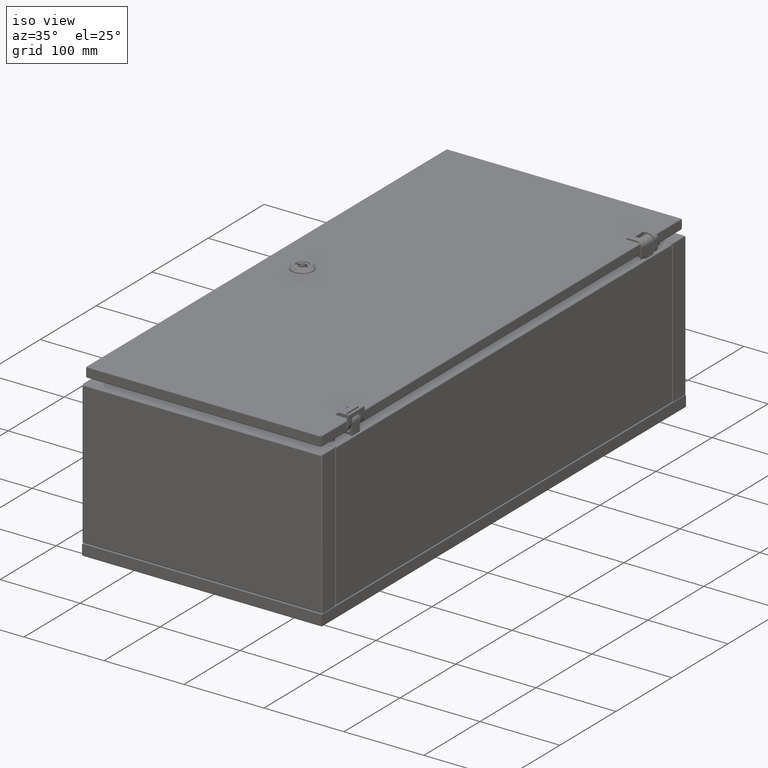
[diagram: clean part render]
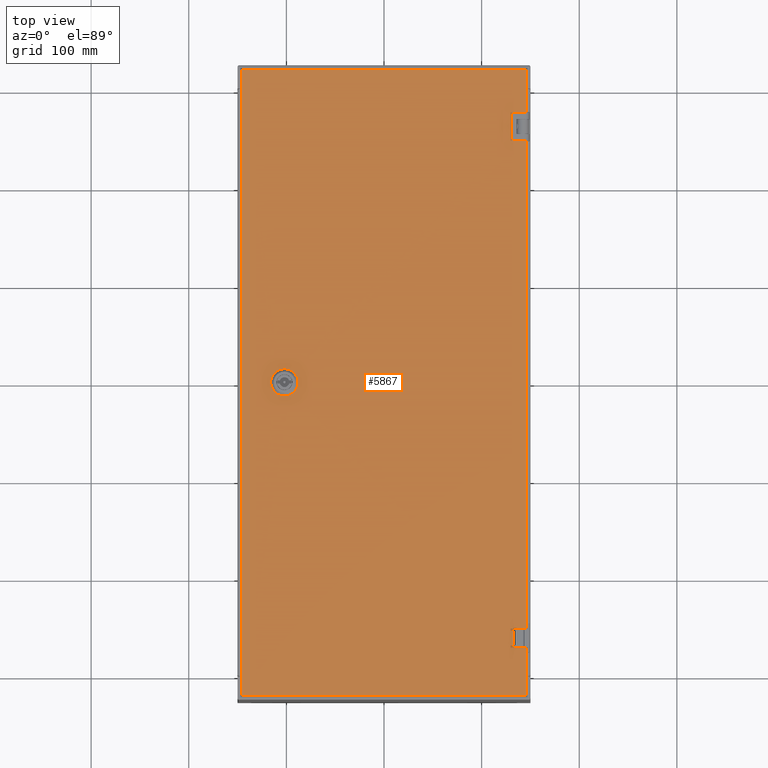
[diagram: tour spotlight — one face highlighted and labeled with its STEP entity id]
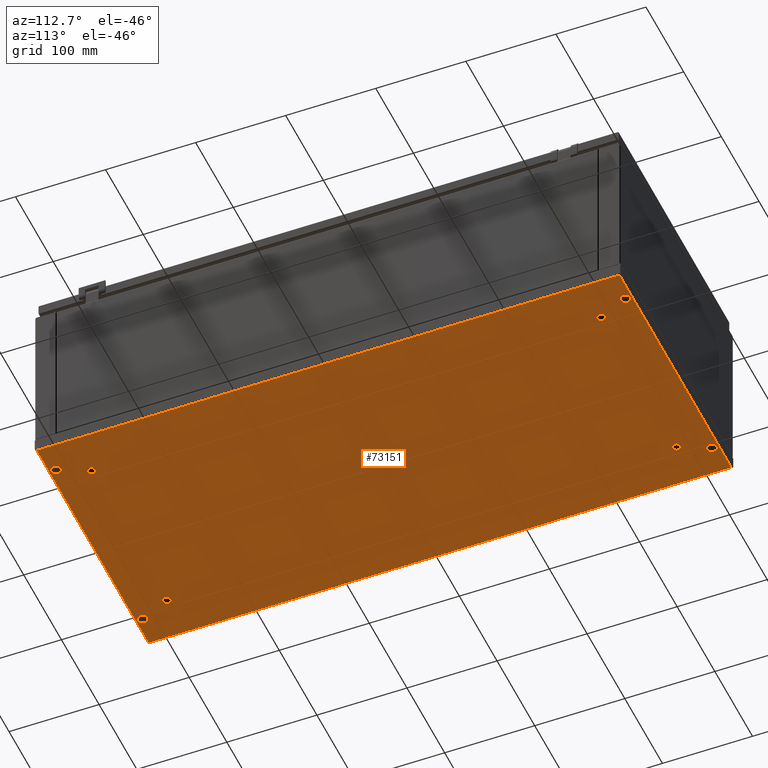
[diagram: tour spotlight — one face highlighted and labeled with its STEP entity id]
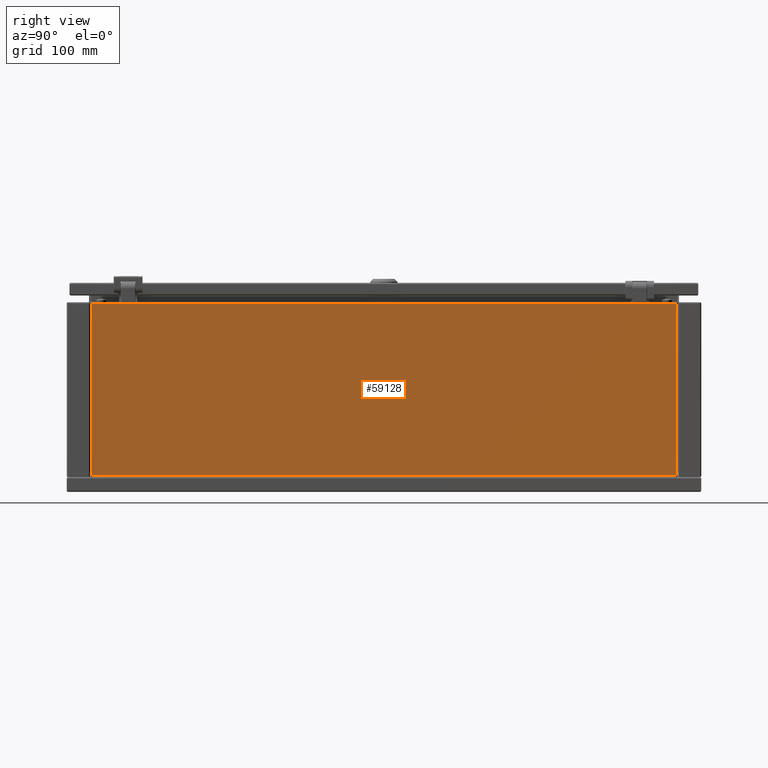
[diagram: tour spotlight — one face highlighted and labeled with its STEP entity id]
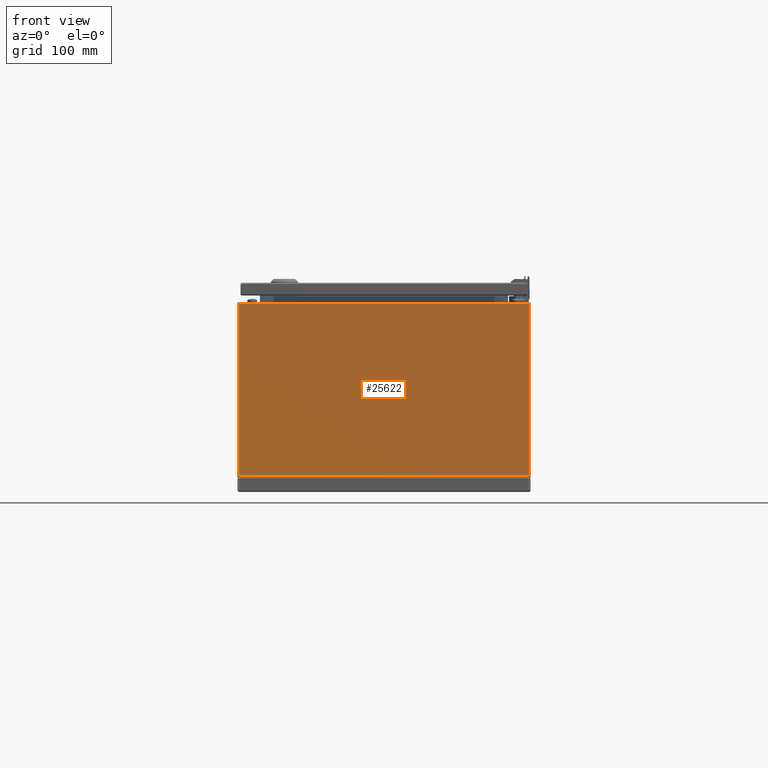
[diagram: tour spotlight — one face highlighted and labeled with its STEP entity id]
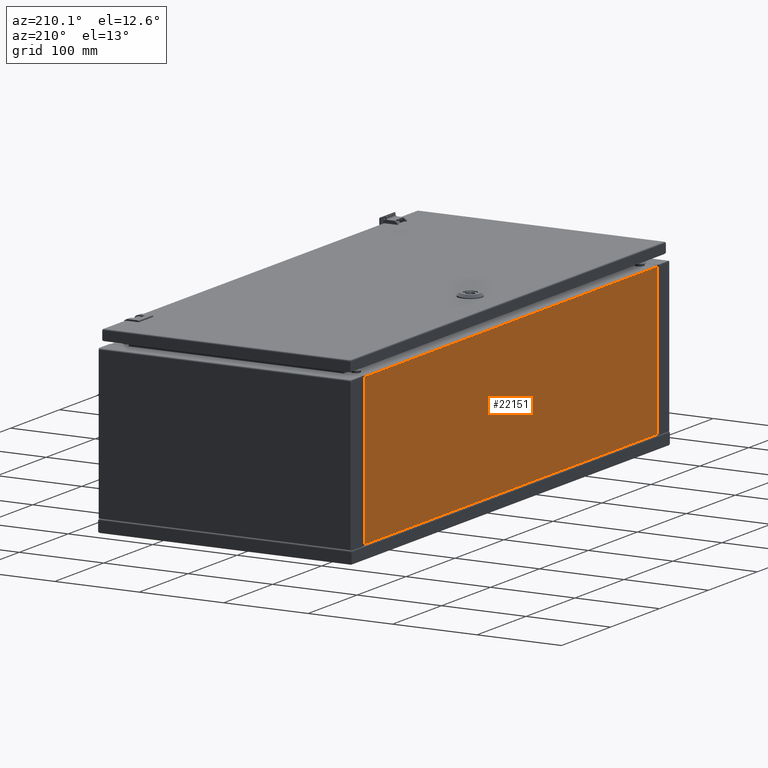
[diagram: tour spotlight — one face highlighted and labeled with its STEP entity id]
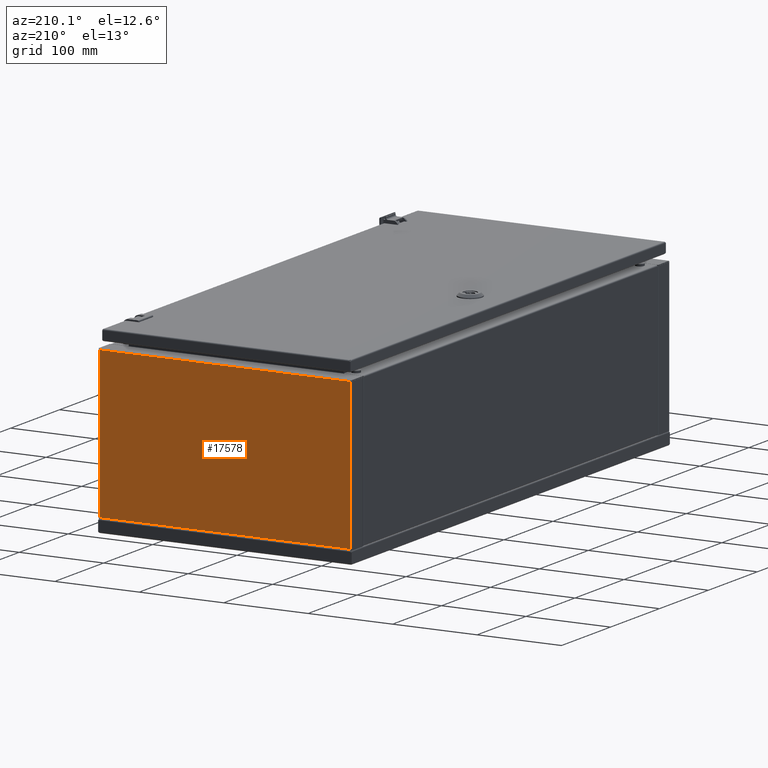
[diagram: tour spotlight — one face highlighted and labeled with its STEP entity id]
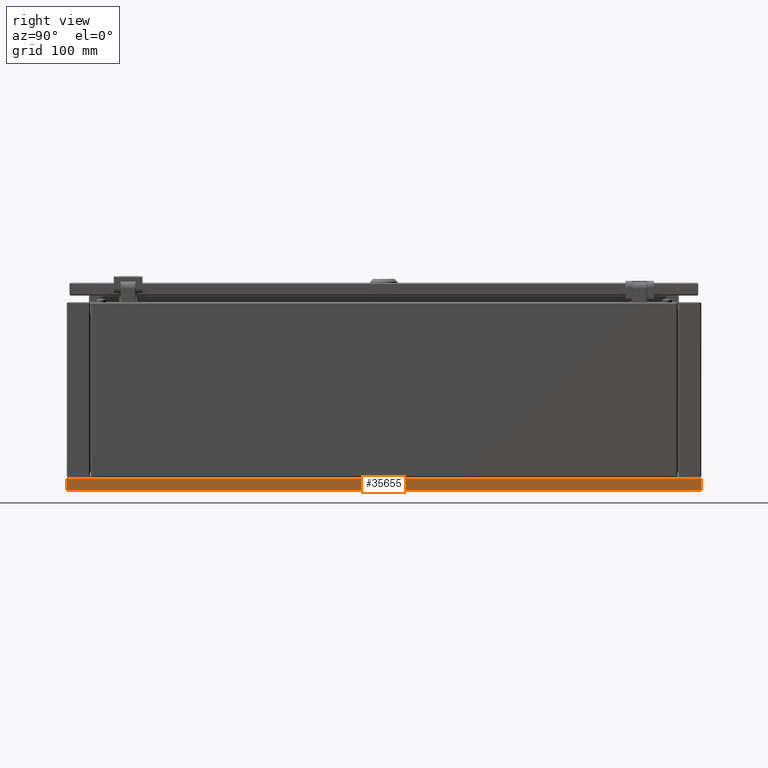
[diagram: tour spotlight — one face highlighted and labeled with its STEP entity id]
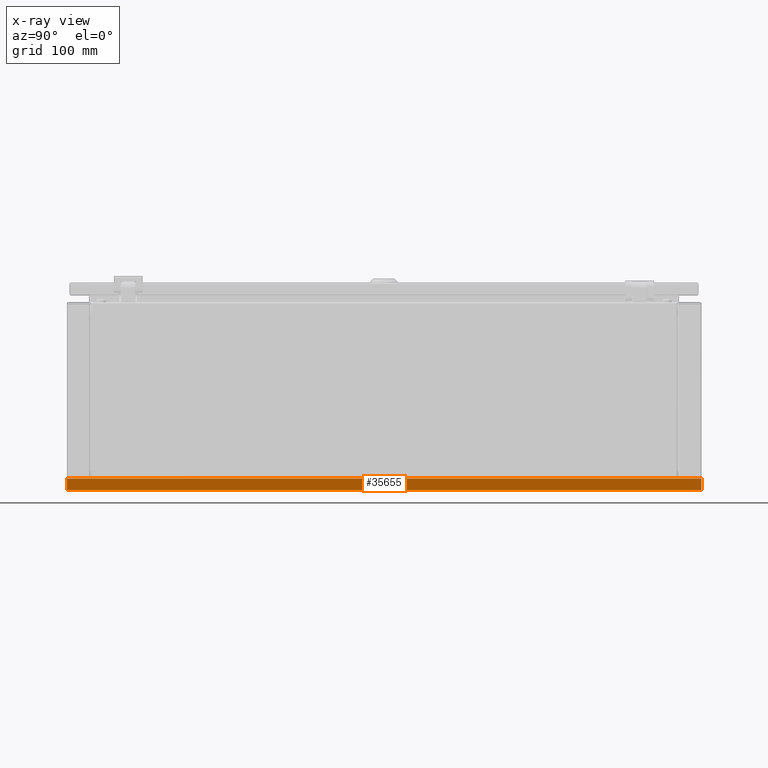
[diagram: x-ray of the same camera — body ghosted, this tour face saturated]
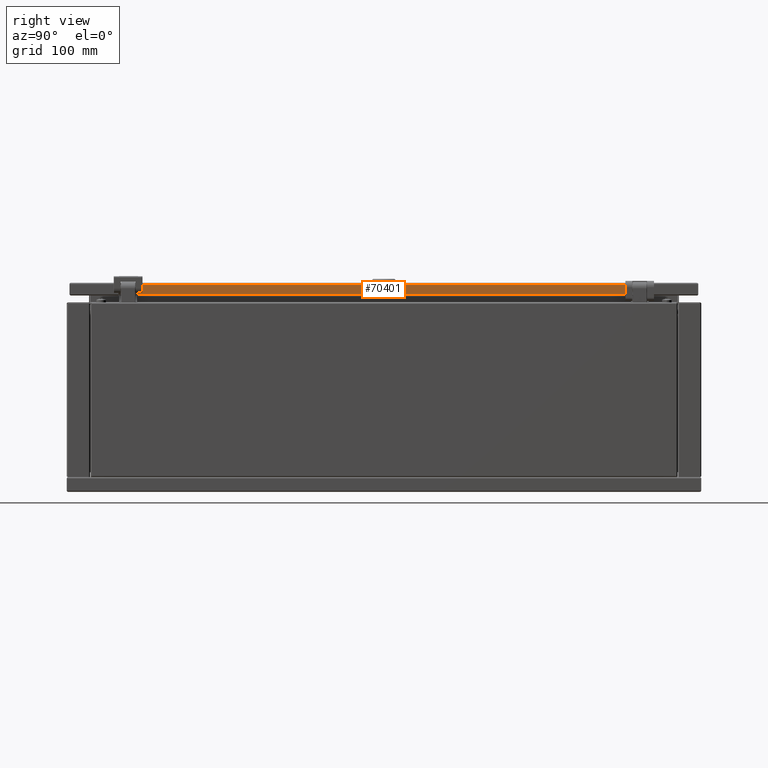
[diagram: tour spotlight — one face highlighted and labeled with its STEP entity id]
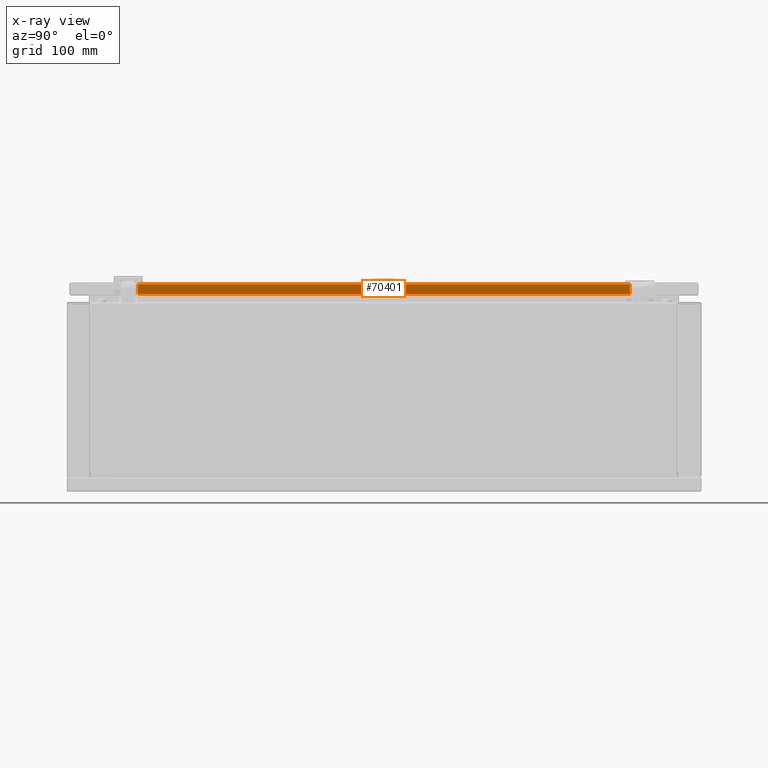
[diagram: x-ray of the same camera — body ghosted, this tour face saturated]
A machine part: a face-by-face anatomy tour. The part has 2431 B-rep faces; the first image is the clean iso view, then the 8 largest visible faces are spotlighted one at a time (largest first), each with its STEP entity span.

Face 1 — top view, entity #5867. In plain terms, the highlighted planar face has unit normal (0, -0, 1).
Definition (entity closure, byte-faithful):
#1028 = CARTESIAN_POINT ( 'NONE',  ( -92.20000000008950300, 5.424717187321570900, 213.1000000000030100 ) ) ;
#2472 = CARTESIAN_POINT ( 'NONE',  ( 145.4999999999020000, -320.6000000000119600, 213.1000000000000200 ) ) ;
#2591 = AXIS2_PLACEMENT_3D ( 'NONE', #3695, #54692, #4481 ) ;
#2686 = VECTOR ( 'NONE', #19305, 1000.000000000000000 ) ;
#2849 = CARTESIAN_POINT ( 'NONE',  ( 132.4999999999106100, 271.8999999999879800, 213.1000000000000200 ) ) ;
#3026 = DIRECTION ( 'NONE',  ( 1.000000000000000000, -7.895888217185719900E-015, -1.206287015244550100E-014 ) ) ;
#3695 = CARTESIAN_POINT ( 'NONE',  ( -102.0000000000894000, -0.1000000000102334000, 213.1000000000030100 ) ) ;
#4481 = DIRECTION ( 'NONE',  ( 7.401486830834377500E-015, 1.000000000000000000, 2.467162276944792200E-015 ) ) ;
#5205 = VERTEX_POINT ( 'NONE', #5734 ) ;
#5734 = CARTESIAN_POINT ( 'NONE',  ( -92.20000000008950300, 5.424717187321570900, 213.1000000000030100 ) ) ;
#5867 = ADVANCED_FACE ( 'NONE', ( #71255, #48711 ), #15367, .T. ) ;
#6152 = EDGE_CURVE ( 'NONE', #19562, #66312, #20167, .T. ) ;
#6205 = VERTEX_POINT ( 'NONE', #20497 ) ;
#6514 = EDGE_CURVE ( 'NONE', #49590, #38140, #32955, .T. ) ;
#6630 = EDGE_CURVE ( 'NONE', #20668, #31736, #17289, .T. ) ;
#6702 = DIRECTION ( 'NONE',  ( -1.000000000000000000, 7.895888217185719900E-015, 1.206287015244550100E-014 ) ) ;
#7383 = VECTOR ( 'NONE', #47115, 1000.000000000000000 ) ;
#7673 = ORIENTED_EDGE ( 'NONE', *, *, #52885, .F. ) ;
#7678 = VERTEX_POINT ( 'NONE', #14795 ) ;
#8443 = ORIENTED_EDGE ( 'NONE', *, *, #60605, .T. ) ;
#8680 = ORIENTED_EDGE ( 'NONE', *, *, #22525, .T. ) ;
#9194 = LINE ( 'NONE', #62669, #73923 ) ;
#9868 = EDGE_CURVE ( 'NONE', #20850, #49590, #47604, .T. ) ;
#9996 = CARTESIAN_POINT ( 'NONE',  ( 132.4999999999061800, -272.1000000000120200, 213.1000000000000200 ) ) ;
#10635 = ORIENTED_EDGE ( 'NONE', *, *, #74445, .F. ) ;
#10656 = VERTEX_POINT ( 'NONE', #50225 ) ;
#11170 = LINE ( 'NONE', #80574, #53324 ) ;
#12256 = AXIS2_PLACEMENT_3D ( 'NONE', #75634, #50994, #57287 ) ;
#13499 = EDGE_CURVE ( 'NONE', #7678, #74459, #80273, .T. ) ;
#14795 = CARTESIAN_POINT ( 'NONE',  ( -145.5000000000867700, 320.3999999999904800, 213.1000000000040000 ) ) ;
#14811 = CIRCLE ( 'NONE', #54269, 11.25000000000000000 ) ;
#15367 = PLANE ( 'NONE',  #19052 ) ;
#15456 = VECTOR ( 'NONE', #80580, 1000.000000000000000 ) ;
#16048 = DIRECTION ( 'NONE',  ( 7.895888217185759400E-015, 1.000000000000000000, 3.081125925390495200E-015 ) ) ;
#16473 = LINE ( 'NONE', #1028, #80293 ) ;
#17289 = LINE ( 'NONE', #66025, #7383 ) ;
#18342 = AXIS2_PLACEMENT_3D ( 'NONE', #74333, #41495, #28599 ) ;
#19052 = AXIS2_PLACEMENT_3D ( 'NONE', #58459, #77919, #3026 ) ;
#19305 = DIRECTION ( 'NONE',  ( 1.000000000000000000, -7.895888217185719900E-015, -1.206287015244550100E-014 ) ) ;
#19562 = VERTEX_POINT ( 'NONE', #55196 ) ;
#20167 = CIRCLE ( 'NONE', #12256, 11.25000000000000000 ) ;
#20497 = CARTESIAN_POINT ( 'NONE',  ( 145.4999999999130000, 320.3999999999894600, 213.1000000000000200 ) ) ;
#20668 = VERTEX_POINT ( 'NONE', #2472 ) ;
#20764 = ORIENTED_EDGE ( 'NONE', *, *, #21875, .F. ) ;
#20850 = VERTEX_POINT ( 'NONE', #60912 ) ;
#21436 = VERTEX_POINT ( 'NONE', #42761 ) ;
#21875 = EDGE_CURVE ( 'NONE', #28996, #10656, #43546, .T. ) ;
#22030 = ORIENTED_EDGE ( 'NONE', *, *, #6514, .F. ) ;
#22525 = EDGE_CURVE ( 'NONE', #6205, #7678, #61074, .T. ) ;
#23013 = DIRECTION ( 'NONE',  ( -1.000000000000000000, 7.895888217185719900E-015, 1.206287015244550100E-014 ) ) ;
#23079 = DIRECTION ( 'NONE',  ( 1.206287015244548000E-014, -3.081125925390590300E-015, 1.000000000000000000 ) ) ;
#25021 = EDGE_CURVE ( 'NONE', #80741, #55486, #52780, .T. ) ;
#25252 = LINE ( 'NONE', #33465, #29216 ) ;
#25266 = ORIENTED_EDGE ( 'NONE', *, *, #70282, .T. ) ;
#25651 = CARTESIAN_POINT ( 'NONE',  ( 132.4999999999063800, -252.1000000000119900, 213.1000000000000200 ) ) ;
#25742 = CARTESIAN_POINT ( 'NONE',  ( 132.4999999999061800, -272.1000000000120200, 213.1000000000000200 ) ) ;
#25841 = ORIENTED_EDGE ( 'NONE', *, *, #52341, .F. ) ;
#27139 = CARTESIAN_POINT ( 'NONE',  ( 145.4999999999080000, -272.1000000000120200, 213.1000000000000200 ) ) ;
#27344 = ORIENTED_EDGE ( 'NONE', *, *, #34917, .F. ) ;
#28599 = DIRECTION ( 'NONE',  ( 7.401486830834377500E-015, 1.000000000000000000, 2.467162276944792200E-015 ) ) ;
#28996 = VERTEX_POINT ( 'NONE', #48664 ) ;
#29216 = VECTOR ( 'NONE', #47165, 1000.000000000000000 ) ;
#29394 = ORIENTED_EDGE ( 'NONE', *, *, #6630, .T. ) ;
#29567 = VERTEX_POINT ( 'NONE', #43112 ) ;
#30226 = CARTESIAN_POINT ( 'NONE',  ( -92.20000000008960200, -5.624717187342199100, 213.1000000000030100 ) ) ;
#31103 = LINE ( 'NONE', #59894, #71265 ) ;
#31679 = EDGE_CURVE ( 'NONE', #66312, #5205, #16473, .T. ) ;
#31736 = VERTEX_POINT ( 'NONE', #27139 ) ;
#32105 = DIRECTION ( 'NONE',  ( 7.895888217185759400E-015, 1.000000000000000000, 3.081125925390495200E-015 ) ) ;
#32340 = DIRECTION ( 'NONE',  ( -7.895888217185759400E-015, -1.000000000000000000, -3.081125925390495200E-015 ) ) ;
#32601 = CARTESIAN_POINT ( 'NONE',  ( 145.4999999999108100, 271.8999999999879800, 213.1000000000000200 ) ) ;
#32955 = LINE ( 'NONE', #45739, #78107 ) ;
#33150 = VECTOR ( 'NONE', #68757, 1000.000000000000000 ) ;
#33374 = ORIENTED_EDGE ( 'NONE', *, *, #70043, .F. ) ;
#33465 = CARTESIAN_POINT ( 'NONE',  ( -111.8000000000894000, 5.424717187321729900, 213.1000000000030100 ) ) ;
#34565 = CARTESIAN_POINT ( 'NONE',  ( -145.5000000000920000, -320.6000000000059900, 213.1000000000025200 ) ) ;
#34917 = EDGE_CURVE ( 'NONE', #21436, #28996, #11170, .T. ) ;
#35808 = CARTESIAN_POINT ( 'NONE',  ( 132.4999999999104100, 251.8999999999879500, 213.1000000000000200 ) ) ;
#36777 = CARTESIAN_POINT ( 'NONE',  ( 146.9999999999104100, 251.8999999999879500, 213.1000000000000200 ) ) ;
#36938 = ORIENTED_EDGE ( 'NONE', *, *, #13499, .T. ) ;
#37325 = DIRECTION ( 'NONE',  ( -1.000000000000000000, 7.895888217185719900E-015, 1.206287015244550100E-014 ) ) ;
#38052 = EDGE_CURVE ( 'NONE', #5205, #21436, #14811, .T. ) ;
#38140 = VERTEX_POINT ( 'NONE', #9996 ) ;
#38368 = VECTOR ( 'NONE', #52254, 1000.000000000000000 ) ;
#39990 = VERTEX_POINT ( 'NONE', #42447 ) ;
#40967 = CARTESIAN_POINT ( 'NONE',  ( 145.6464466093194100, 320.3999999999879800, 213.1000000000000200 ) ) ;
#41495 = DIRECTION ( 'NONE',  ( 1.206287015244548000E-014, -3.081125925390590300E-015, 1.000000000000000000 ) ) ;
#42447 = CARTESIAN_POINT ( 'NONE',  ( -107.5247171874214000, -9.900000000010191300, 213.1000000000030100 ) ) ;
#42761 = CARTESIAN_POINT ( 'NONE',  ( -96.47528281275751300, 9.699999999989710600, 213.1000000000030100 ) ) ;
#43112 = CARTESIAN_POINT ( 'NONE',  ( 132.4999999999106100, 271.8999999999879800, 213.1000000000000200 ) ) ;
#43546 = CIRCLE ( 'NONE', #2591, 11.25000000000000000 ) ;
#44593 = VECTOR ( 'NONE', #23013, 1000.000000000000000 ) ;
#45739 = CARTESIAN_POINT ( 'NONE',  ( 132.4999999999063800, -252.1000000000119900, 213.1000000000000200 ) ) ;
#46617 = ORIENTED_EDGE ( 'NONE', *, *, #57560, .F. ) ;
#47115 = DIRECTION ( 'NONE',  ( 7.895888217185759400E-015, 1.000000000000000000, 3.081125925390495200E-015 ) ) ;
#47165 = DIRECTION ( 'NONE',  ( -7.895888217185759400E-015, -1.000000000000000000, -3.081125925390495200E-015 ) ) ;
#47604 = LINE ( 'NONE', #67387, #44593 ) ;
#47839 = ORIENTED_EDGE ( 'NONE', *, *, #48514, .F. ) ;
#48310 = EDGE_LOOP ( 'NONE', ( #33374, #10635, #20764, #27344, #68338, #56050, #72190, #7673 ) ) ;
#48514 = EDGE_CURVE ( 'NONE', #67435, #29567, #9194, .T. ) ;
#48664 = CARTESIAN_POINT ( 'NONE',  ( -107.5247171874211900, 9.699999999989808300, 213.1000000000030100 ) ) ;
#48711 = FACE_OUTER_BOUND ( 'NONE', #53146, .T. ) ;
#48842 = DIRECTION ( 'NONE',  ( -1.000000000000000000, 7.895888217185719900E-015, 1.206287015244550100E-014 ) ) ;
#49404 = VERTEX_POINT ( 'NONE', #61881 ) ;
#49590 = VERTEX_POINT ( 'NONE', #25651 ) ;
#50225 = CARTESIAN_POINT ( 'NONE',  ( -111.8000000000894000, 5.424717187321729900, 213.1000000000030100 ) ) ;
#50994 = DIRECTION ( 'NONE',  ( 1.206287015244548000E-014, -3.081125925390590300E-015, 1.000000000000000000 ) ) ;
#51443 = CARTESIAN_POINT ( 'NONE',  ( -107.5247171874214000, -9.900000000010191300, 213.1000000000030100 ) ) ;
#52254 = DIRECTION ( 'NONE',  ( -7.895888217185759400E-015, -1.000000000000000000, -3.081125925390495200E-015 ) ) ;
#52341 = EDGE_CURVE ( 'NONE', #38140, #31736, #79298, .T. ) ;
#52780 = LINE ( 'NONE', #36777, #15456 ) ;
#52885 = EDGE_CURVE ( 'NONE', #39990, #19562, #70373, .T. ) ;
#53146 = EDGE_LOOP ( 'NONE', ( #57057, #25266, #65082, #46617, #47839, #60159, #8680, #36938, #8443, #29394, #25841, #22030 ) ) ;
#53324 = VECTOR ( 'NONE', #37325, 1000.000000000000000 ) ;
#54269 = AXIS2_PLACEMENT_3D ( 'NONE', #60636, #23079, #72693 ) ;
#54450 = CARTESIAN_POINT ( 'NONE',  ( 145.4999999999076300, -320.7464466094190200, 213.1000000000000200 ) ) ;
#54582 = VECTOR ( 'NONE', #16048, 1000.000000000000000 ) ;
#54692 = DIRECTION ( 'NONE',  ( 1.206287015244548000E-014, -3.081125925390590300E-015, 1.000000000000000000 ) ) ;
#55196 = CARTESIAN_POINT ( 'NONE',  ( -96.47528281275769800, -9.900000000010280100, 213.1000000000030100 ) ) ;
#55486 = VERTEX_POINT ( 'NONE', #69456 ) ;
#56050 = ORIENTED_EDGE ( 'NONE', *, *, #31679, .F. ) ;
#57057 = ORIENTED_EDGE ( 'NONE', *, *, #9868, .F. ) ;
#57287 = DIRECTION ( 'NONE',  ( 7.401486830834377500E-015, 1.000000000000000000, 2.467162276944792200E-015 ) ) ;
#57560 = EDGE_CURVE ( 'NONE', #29567, #80741, #74552, .T. ) ;
#57833 = DIRECTION ( 'NONE',  ( 7.895888217185759400E-015, 1.000000000000000000, 3.081125925390495200E-015 ) ) ;
#58111 = CARTESIAN_POINT ( 'NONE',  ( 145.4999999999076300, -320.7464466094190200, 213.1000000000000200 ) ) ;
#58459 = CARTESIAN_POINT ( 'NONE',  ( -8.963844636832890400E-011, -0.1000000000110134000, 213.1000000000000200 ) ) ;
#59021 = VECTOR ( 'NONE', #32105, 1000.000000000000000 ) ;
#59894 = CARTESIAN_POINT ( 'NONE',  ( -145.6464466094990100, -320.6000000000099700, 213.1000000000025200 ) ) ;
#60159 = ORIENTED_EDGE ( 'NONE', *, *, #78521, .T. ) ;
#60605 = EDGE_CURVE ( 'NONE', #74459, #20668, #31103, .T. ) ;
#60636 = CARTESIAN_POINT ( 'NONE',  ( -102.0000000000894000, -0.1000000000102334000, 213.1000000000030100 ) ) ;
#60912 = CARTESIAN_POINT ( 'NONE',  ( 145.4999999999082000, -252.1000000000119900, 213.1000000000000200 ) ) ;
#61074 = LINE ( 'NONE', #40967, #72842 ) ;
#61881 = CARTESIAN_POINT ( 'NONE',  ( -111.8000000000894000, -5.624717187342040100, 213.1000000000030100 ) ) ;
#62669 = CARTESIAN_POINT ( 'NONE',  ( 146.9999999999106100, 271.8999999999879800, 213.1000000000000200 ) ) ;
#63018 = CARTESIAN_POINT ( 'NONE',  ( -145.5000000000872000, 320.5464466093969800, 213.1000000000045100 ) ) ;
#63953 = CIRCLE ( 'NONE', #18342, 11.25000000000000000 ) ;
#65082 = ORIENTED_EDGE ( 'NONE', *, *, #25021, .F. ) ;
#66025 = CARTESIAN_POINT ( 'NONE',  ( 145.4999999999076300, -320.7464466094190200, 213.1000000000000200 ) ) ;
#66312 = VERTEX_POINT ( 'NONE', #30226 ) ;
#66322 = LINE ( 'NONE', #54450, #54582 ) ;
#67387 = CARTESIAN_POINT ( 'NONE',  ( 132.4999999999063800, -252.1000000000119900, 213.1000000000000200 ) ) ;
#67435 = VERTEX_POINT ( 'NONE', #32601 ) ;
#68338 = ORIENTED_EDGE ( 'NONE', *, *, #38052, .F. ) ;
#68757 = DIRECTION ( 'NONE',  ( -7.895888217185759400E-015, -1.000000000000000000, -3.081125925390495200E-015 ) ) ;
#69456 = CARTESIAN_POINT ( 'NONE',  ( 145.4999999999106100, 251.8999999999879500, 213.1000000000000200 ) ) ;
#69580 = DIRECTION ( 'NONE',  ( 1.000000000000000000, -7.895888217185719900E-015, -1.206287015244550100E-014 ) ) ;
#69763 = LINE ( 'NONE', #58111, #59021 ) ;
#70043 = EDGE_CURVE ( 'NONE', #49404, #39990, #63953, .T. ) ;
#70282 = EDGE_CURVE ( 'NONE', #20850, #55486, #69763, .T. ) ;
#70373 = LINE ( 'NONE', #51443, #2686 ) ;
#71255 = FACE_BOUND ( 'NONE', #48310, .T. ) ;
#71265 = VECTOR ( 'NONE', #72208, 1000.000000000000000 ) ;
#72190 = ORIENTED_EDGE ( 'NONE', *, *, #6152, .F. ) ;
#72208 = DIRECTION ( 'NONE',  ( 1.000000000000000000, -7.895888217185719900E-015, -1.206287015244550100E-014 ) ) ;
#72693 = DIRECTION ( 'NONE',  ( 7.401486830834377500E-015, 1.000000000000000000, 2.467162276944792200E-015 ) ) ;
#72842 = VECTOR ( 'NONE', #48842, 1000.000000000000000 ) ;
#73923 = VECTOR ( 'NONE', #6702, 1000.000000000000000 ) ;
#74333 = CARTESIAN_POINT ( 'NONE',  ( -102.0000000000894000, -0.1000000000102334000, 213.1000000000030100 ) ) ;
#74445 = EDGE_CURVE ( 'NONE', #10656, #49404, #25252, .T. ) ;
#74459 = VERTEX_POINT ( 'NONE', #34565 ) ;
#74552 = LINE ( 'NONE', #2849, #38368 ) ;
#75634 = CARTESIAN_POINT ( 'NONE',  ( -102.0000000000894000, -0.1000000000102334000, 213.1000000000030100 ) ) ;
#77919 = DIRECTION ( 'NONE',  ( 1.206287015244547700E-014, -3.081125925390590300E-015, 1.000000000000000000 ) ) ;
#78107 = VECTOR ( 'NONE', #32340, 1000.000000000000000 ) ;
#78521 = EDGE_CURVE ( 'NONE', #67435, #6205, #66322, .T. ) ;
#79298 = LINE ( 'NONE', #25742, #81235 ) ;
#80273 = LINE ( 'NONE', #63018, #33150 ) ;
#80293 = VECTOR ( 'NONE', #57833, 1000.000000000000000 ) ;
#80574 = CARTESIAN_POINT ( 'NONE',  ( -107.5247171874211900, 9.699999999989808300, 213.1000000000030100 ) ) ;
#80580 = DIRECTION ( 'NONE',  ( 1.000000000000000000, -7.895888217185719900E-015, -1.206287015244550100E-014 ) ) ;
#80741 = VERTEX_POINT ( 'NONE', #35808 ) ;
#81235 = VECTOR ( 'NONE', #69580, 1000.000000000000000 ) ;

Face 2 — auxiliary view, entity #73151. In plain terms, the highlighted planar face has unit normal (-0, 0, 1).
Definition (entity closure, byte-faithful):
#630 = DIRECTION ( 'NONE',  ( 0.0000000000000000000, 1.000000000000000000, 0.0000000000000000000 ) ) ;
#1087 = CARTESIAN_POINT ( 'NONE',  ( 115.0000000000000000, 316.0999999999999700, -1.000000000000306000 ) ) ;
#1512 = AXIS2_PLACEMENT_3D ( 'NONE', #58659, #14760, #33982 ) ;
#1808 = CIRCLE ( 'NONE', #68305, 5.500000000000005300 ) ;
#2179 = CARTESIAN_POINT ( 'NONE',  ( 115.0000000000000000, -321.6000000000000200, -1.000000000000306000 ) ) ;
#2406 = CARTESIAN_POINT ( 'NONE',  ( 100.0000000000000000, -283.0000000000000000, -1.000000000000306000 ) ) ;
#2735 = VERTEX_POINT ( 'NONE', #34084 ) ;
#3343 = CARTESIAN_POINT ( 'NONE',  ( 104.5000000000000100, 283.0000000000000000, -1.000000000000306000 ) ) ;
#4110 = DIRECTION ( 'NONE',  ( 0.0000000000000000000, 3.810767045206524700E-031, 1.000000000000000000 ) ) ;
#4367 = DIRECTION ( 'NONE',  ( -1.000000000000000000, -9.860761315262649800E-032, 0.0000000000000000000 ) ) ;
#4882 = CARTESIAN_POINT ( 'NONE',  ( -100.0000000000000000, 283.0000000000000000, -1.000000000000306000 ) ) ;
#5003 = EDGE_LOOP ( 'NONE', ( #29200, #36175 ) ) ;
#5265 = VERTEX_POINT ( 'NONE', #45220 ) ;
#6097 = CIRCLE ( 'NONE', #56108, 5.500000000000005300 ) ;
#6887 = DIRECTION ( 'NONE',  ( 0.0000000000000000000, -1.000000000000000000, 0.0000000000000000000 ) ) ;
#7426 = CIRCLE ( 'NONE', #63292, 5.500000000000005300 ) ;
#8249 = ORIENTED_EDGE ( 'NONE', *, *, #70412, .F. ) ;
#8745 = FACE_BOUND ( 'NONE', #16184, .T. ) ;
#8811 = VERTEX_POINT ( 'NONE', #62527 ) ;
#8820 = EDGE_CURVE ( 'NONE', #5265, #40522, #7426, .T. ) ;
#9378 = DIRECTION ( 'NONE',  ( -3.757706426085025200E-062, 3.810767045206524700E-031, 1.000000000000000000 ) ) ;
#9965 = CARTESIAN_POINT ( 'NONE',  ( -148.5000000000000000, 323.5000000000000000, -1.000000000000334000 ) ) ;
#10501 = DIRECTION ( 'NONE',  ( -1.479114197289395800E-031, 1.000000000000000000, 3.595005848646064900E-032 ) ) ;
#10897 = LINE ( 'NONE', #72414, #75574 ) ;
#11711 = CARTESIAN_POINT ( 'NONE',  ( 115.0000000000000000, 310.5999999999999700, -1.000000000000306000 ) ) ;
#12015 = VERTEX_POINT ( 'NONE', #3343 ) ;
#12184 = DIRECTION ( 'NONE',  ( 0.0000000000000000000, -1.000000000000000000, 0.0000000000000000000 ) ) ;
#12401 = ORIENTED_EDGE ( 'NONE', *, *, #59786, .T. ) ;
#13168 = DIRECTION ( 'NONE',  ( 0.0000000000000000000, 1.000000000000000000, 0.0000000000000000000 ) ) ;
#13338 = EDGE_CURVE ( 'NONE', #73642, #26078, #69474, .T. ) ;
#13657 = DIRECTION ( 'NONE',  ( 0.0000000000000000000, -1.000000000000000000, 0.0000000000000000000 ) ) ;
#13771 = AXIS2_PLACEMENT_3D ( 'NONE', #1087, #38236, #70221 ) ;
#13969 = CIRCLE ( 'NONE', #78305, 4.500000000000003600 ) ;
#14687 = DIRECTION ( 'NONE',  ( 0.0000000000000000000, 3.810767045206524700E-031, 1.000000000000000000 ) ) ;
#14728 = CIRCLE ( 'NONE', #71328, 4.500000000000003600 ) ;
#14760 = DIRECTION ( 'NONE',  ( 0.0000000000000000000, -1.959796370949425000E-031, -1.000000000000000000 ) ) ;
#14810 = EDGE_CURVE ( 'NONE', #8811, #79590, #1808, .T. ) ;
#15545 = FACE_BOUND ( 'NONE', #23047, .T. ) ;
#16184 = EDGE_LOOP ( 'NONE', ( #55852, #40926 ) ) ;
#17374 = EDGE_CURVE ( 'NONE', #74874, #24590, #39906, .T. ) ;
#18258 = CARTESIAN_POINT ( 'NONE',  ( 115.0000000000000000, 316.0999999999999700, -1.000000000000306000 ) ) ;
#18728 = CARTESIAN_POINT ( 'NONE',  ( 148.5000000000000000, 323.5000000000000000, -1.000000000000306000 ) ) ;
#18760 = CARTESIAN_POINT ( 'NONE',  ( -115.0000000000000000, 316.0999999999999700, -1.000000000000306000 ) ) ;
#18878 = CIRCLE ( 'NONE', #66293, 5.500000000000005300 ) ;
#19280 = VERTEX_POINT ( 'NONE', #26186 ) ;
#19631 = EDGE_CURVE ( 'NONE', #2735, #46955, #6097, .T. ) ;
#20674 = EDGE_CURVE ( 'NONE', #12015, #79541, #14728, .T. ) ;
#22352 = VECTOR ( 'NONE', #10501, 1000.000000000000000 ) ;
#22530 = DIRECTION ( 'NONE',  ( 1.000000000000000000, 9.860761315262649800E-032, 0.0000000000000000000 ) ) ;
#22998 = DIRECTION ( 'NONE',  ( 0.0000000000000000000, -1.000000000000000000, 0.0000000000000000000 ) ) ;
#23047 = EDGE_LOOP ( 'NONE', ( #51411, #77199 ) ) ;
#23307 = DIRECTION ( 'NONE',  ( 0.0000000000000000000, -1.000000000000000000, 0.0000000000000000000 ) ) ;
#23474 = FACE_BOUND ( 'NONE', #5003, .T. ) ;
#23602 = CARTESIAN_POINT ( 'NONE',  ( -100.0000000000000000, -283.0000000000000000, -1.000000000000306000 ) ) ;
#24362 = DIRECTION ( 'NONE',  ( 1.479114197289395800E-031, -1.000000000000000000, -1.084202172485503800E-016 ) ) ;
#24590 = VERTEX_POINT ( 'NONE', #68619 ) ;
#24637 = ORIENTED_EDGE ( 'NONE', *, *, #17374, .T. ) ;
#24664 = EDGE_CURVE ( 'NONE', #62298, #35218, #55872, .T. ) ;
#24795 = CIRCLE ( 'NONE', #34121, 4.500000000000003600 ) ;
#25045 = ORIENTED_EDGE ( 'NONE', *, *, #14810, .F. ) ;
#25554 = CARTESIAN_POINT ( 'NONE',  ( -115.0000000000000000, 316.0999999999999700, -1.000000000000306000 ) ) ;
#25766 = DIRECTION ( 'NONE',  ( 0.0000000000000000000, -1.000000000000000000, 0.0000000000000000000 ) ) ;
#26078 = VERTEX_POINT ( 'NONE', #65601 ) ;
#26186 = CARTESIAN_POINT ( 'NONE',  ( 148.5000000000000000, -323.5000000000000000, -1.000000000000334000 ) ) ;
#26993 = AXIS2_PLACEMENT_3D ( 'NONE', #37472, #49771, #12184 ) ;
#27109 = VERTEX_POINT ( 'NONE', #31308 ) ;
#27705 = DIRECTION ( 'NONE',  ( 0.0000000000000000000, 3.810767045206524700E-031, 1.000000000000000000 ) ) ;
#29200 = ORIENTED_EDGE ( 'NONE', *, *, #69613, .T. ) ;
#29356 = AXIS2_PLACEMENT_3D ( 'NONE', #2406, #27705, #71250 ) ;
#29743 = EDGE_CURVE ( 'NONE', #40522, #5265, #63959, .T. ) ;
#31308 = CARTESIAN_POINT ( 'NONE',  ( 104.5000000000000100, -283.0000000000000000, -1.000000000000306000 ) ) ;
#32278 = FACE_BOUND ( 'NONE', #51237, .T. ) ;
#33882 = ORIENTED_EDGE ( 'NONE', *, *, #29743, .F. ) ;
#33982 = DIRECTION ( 'NONE',  ( 0.0000000000000000000, -1.000000000000000000, 0.0000000000000000000 ) ) ;
#34084 = CARTESIAN_POINT ( 'NONE',  ( -115.0000000000000000, 310.5999999999999700, -1.000000000000306000 ) ) ;
#34121 = AXIS2_PLACEMENT_3D ( 'NONE', #35080, #60554, #22998 ) ;
#34690 = CARTESIAN_POINT ( 'NONE',  ( 115.0000000000000000, 321.6000000000000200, -1.000000000000306000 ) ) ;
#34699 = VERTEX_POINT ( 'NONE', #41206 ) ;
#34726 = AXIS2_PLACEMENT_3D ( 'NONE', #4882, #79777, #23307 ) ;
#35080 = CARTESIAN_POINT ( 'NONE',  ( 100.0000000000000000, -283.0000000000000000, -1.000000000000306000 ) ) ;
#35214 = ORIENTED_EDGE ( 'NONE', *, *, #20674, .T. ) ;
#35218 = VERTEX_POINT ( 'NONE', #11711 ) ;
#36175 = ORIENTED_EDGE ( 'NONE', *, *, #77868, .T. ) ;
#36370 = EDGE_CURVE ( 'NONE', #46955, #2735, #18878, .T. ) ;
#37472 = CARTESIAN_POINT ( 'NONE',  ( -100.0000000000000000, -283.0000000000000000, -1.000000000000306000 ) ) ;
#38236 = DIRECTION ( 'NONE',  ( 0.0000000000000000000, -1.959796370949425000E-031, -1.000000000000000000 ) ) ;
#38431 = DIRECTION ( 'NONE',  ( 0.0000000000000000000, -1.000000000000000000, 0.0000000000000000000 ) ) ;
#38484 = DIRECTION ( 'NONE',  ( 0.0000000000000000000, -1.959796370949425000E-031, -1.000000000000000000 ) ) ;
#38967 = ORIENTED_EDGE ( 'NONE', *, *, #71362, .T. ) ;
#39459 = CIRCLE ( 'NONE', #51393, 4.500000000000003600 ) ;
#39470 = CARTESIAN_POINT ( 'NONE',  ( -100.0000000000000000, 283.0000000000000000, -1.000000000000306000 ) ) ;
#39472 = CIRCLE ( 'NONE', #29356, 4.500000000000003600 ) ;
#39481 = CARTESIAN_POINT ( 'NONE',  ( -104.5000000000000100, -283.0000000000000000, -1.000000000000306000 ) ) ;
#39582 = CARTESIAN_POINT ( 'NONE',  ( 100.0000000000000000, 283.0000000000000000, -1.000000000000306000 ) ) ;
#39906 = CIRCLE ( 'NONE', #26993, 4.500000000000003600 ) ;
#40144 = AXIS2_PLACEMENT_3D ( 'NONE', #45486, #51267, #13657 ) ;
#40194 = FACE_BOUND ( 'NONE', #57782, .T. ) ;
#40432 = VECTOR ( 'NONE', #49435, 1000.000000000000000 ) ;
#40522 = VERTEX_POINT ( 'NONE', #64294 ) ;
#40555 = DIRECTION ( 'NONE',  ( 0.0000000000000000000, -1.000000000000000000, 0.0000000000000000000 ) ) ;
#40926 = ORIENTED_EDGE ( 'NONE', *, *, #61663, .T. ) ;
#40961 = PLANE ( 'NONE',  #70633 ) ;
#41206 = CARTESIAN_POINT ( 'NONE',  ( 95.50000000000000000, -283.0000000000000000, -1.000000000000306000 ) ) ;
#42159 = FACE_BOUND ( 'NONE', #62259, .T. ) ;
#42437 = EDGE_CURVE ( 'NONE', #79541, #12015, #39459, .T. ) ;
#43305 = DIRECTION ( 'NONE',  ( 0.0000000000000000000, 1.000000000000000000, 0.0000000000000000000 ) ) ;
#44199 = EDGE_CURVE ( 'NONE', #19280, #70098, #64624, .T. ) ;
#44200 = AXIS2_PLACEMENT_3D ( 'NONE', #18258, #68463, #43305 ) ;
#44732 = DIRECTION ( 'NONE',  ( 0.0000000000000000000, -1.959796370949425000E-031, -1.000000000000000000 ) ) ;
#45220 = CARTESIAN_POINT ( 'NONE',  ( -115.0000000000000000, -321.6000000000000200, -1.000000000000306000 ) ) ;
#45486 = CARTESIAN_POINT ( 'NONE',  ( -115.0000000000000000, -316.0999999999999700, -1.000000000000306000 ) ) ;
#46165 = EDGE_CURVE ( 'NONE', #35218, #62298, #64487, .T. ) ;
#46955 = VERTEX_POINT ( 'NONE', #55895 ) ;
#47742 = ORIENTED_EDGE ( 'NONE', *, *, #50153, .T. ) ;
#48607 = ORIENTED_EDGE ( 'NONE', *, *, #36370, .F. ) ;
#49435 = DIRECTION ( 'NONE',  ( 1.000000000000000000, 9.860761315262649800E-032, 0.0000000000000000000 ) ) ;
#49771 = DIRECTION ( 'NONE',  ( 0.0000000000000000000, 3.810767045206524700E-031, 1.000000000000000000 ) ) ;
#50153 = EDGE_CURVE ( 'NONE', #59847, #65967, #57039, .T. ) ;
#51237 = EDGE_LOOP ( 'NONE', ( #25045, #8249 ) ) ;
#51267 = DIRECTION ( 'NONE',  ( 0.0000000000000000000, -1.959796370949425000E-031, -1.000000000000000000 ) ) ;
#51393 = AXIS2_PLACEMENT_3D ( 'NONE', #64118, #51527, #38431 ) ;
#51411 = ORIENTED_EDGE ( 'NONE', *, *, #24664, .F. ) ;
#51527 = DIRECTION ( 'NONE',  ( 0.0000000000000000000, 3.810767045206524700E-031, 1.000000000000000000 ) ) ;
#52945 = DIRECTION ( 'NONE',  ( 0.0000000000000000000, 3.810767045206524700E-031, 1.000000000000000000 ) ) ;
#54522 = CARTESIAN_POINT ( 'NONE',  ( -95.50000000000000000, 283.0000000000000000, -1.000000000000306000 ) ) ;
#55852 = ORIENTED_EDGE ( 'NONE', *, *, #13338, .T. ) ;
#55872 = CIRCLE ( 'NONE', #13771, 5.500000000000005300 ) ;
#55895 = CARTESIAN_POINT ( 'NONE',  ( -115.0000000000000000, 321.6000000000000200, -1.000000000000306000 ) ) ;
#56108 = AXIS2_PLACEMENT_3D ( 'NONE', #25554, #44732, #13168 ) ;
#57039 = LINE ( 'NONE', #68599, #40432 ) ;
#57782 = EDGE_LOOP ( 'NONE', ( #72957, #24637 ) ) ;
#58659 = CARTESIAN_POINT ( 'NONE',  ( 115.0000000000000000, -316.0999999999999700, -1.000000000000306000 ) ) ;
#59002 = DIRECTION ( 'NONE',  ( 0.0000000000000000000, -1.000000000000000000, 0.0000000000000000000 ) ) ;
#59621 = EDGE_LOOP ( 'NONE', ( #35214, #72826 ) ) ;
#59786 = EDGE_CURVE ( 'NONE', #70098, #59847, #61533, .T. ) ;
#59833 = CARTESIAN_POINT ( 'NONE',  ( 4.996003610813200400E-013, -1.214655277309446000E-013, -1.000000000000306000 ) ) ;
#59847 = VERTEX_POINT ( 'NONE', #9965 ) ;
#60554 = DIRECTION ( 'NONE',  ( 0.0000000000000000000, 3.810767045206524700E-031, 1.000000000000000000 ) ) ;
#60702 = ORIENTED_EDGE ( 'NONE', *, *, #19631, .F. ) ;
#60913 = DIRECTION ( 'NONE',  ( 0.0000000000000000000, -1.000000000000000000, 0.0000000000000000000 ) ) ;
#61342 = EDGE_LOOP ( 'NONE', ( #67509, #12401, #47742, #38967 ) ) ;
#61533 = LINE ( 'NONE', #78747, #22352 ) ;
#61663 = EDGE_CURVE ( 'NONE', #26078, #73642, #75982, .T. ) ;
#62259 = EDGE_LOOP ( 'NONE', ( #33882, #65175 ) ) ;
#62298 = VERTEX_POINT ( 'NONE', #34690 ) ;
#62527 = CARTESIAN_POINT ( 'NONE',  ( 115.0000000000000000, -310.5999999999999700, -1.000000000000306000 ) ) ;
#62731 = FACE_BOUND ( 'NONE', #74605, .T. ) ;
#63292 = AXIS2_PLACEMENT_3D ( 'NONE', #68806, #63325, #25766 ) ;
#63325 = DIRECTION ( 'NONE',  ( 0.0000000000000000000, -1.959796370949425000E-031, -1.000000000000000000 ) ) ;
#63499 = DIRECTION ( 'NONE',  ( 0.0000000000000000000, -1.959796370949425000E-031, -1.000000000000000000 ) ) ;
#63959 = CIRCLE ( 'NONE', #40144, 5.500000000000005300 ) ;
#64118 = CARTESIAN_POINT ( 'NONE',  ( 100.0000000000000000, 283.0000000000000000, -1.000000000000306000 ) ) ;
#64294 = CARTESIAN_POINT ( 'NONE',  ( -115.0000000000000000, -310.5999999999999700, -1.000000000000306000 ) ) ;
#64487 = CIRCLE ( 'NONE', #44200, 5.500000000000005300 ) ;
#64624 = LINE ( 'NONE', #77341, #75375 ) ;
#65175 = ORIENTED_EDGE ( 'NONE', *, *, #8820, .F. ) ;
#65601 = CARTESIAN_POINT ( 'NONE',  ( -104.5000000000000100, 283.0000000000000000, -1.000000000000306000 ) ) ;
#65967 = VERTEX_POINT ( 'NONE', #18728 ) ;
#66293 = AXIS2_PLACEMENT_3D ( 'NONE', #18760, #63499, #630 ) ;
#67509 = ORIENTED_EDGE ( 'NONE', *, *, #44199, .T. ) ;
#68305 = AXIS2_PLACEMENT_3D ( 'NONE', #69658, #38484, #6887 ) ;
#68463 = DIRECTION ( 'NONE',  ( 0.0000000000000000000, -1.959796370949425000E-031, -1.000000000000000000 ) ) ;
#68599 = CARTESIAN_POINT ( 'NONE',  ( -148.5000000000000000, 323.5000000000000000, -1.000000000000361900 ) ) ;
#68619 = CARTESIAN_POINT ( 'NONE',  ( -95.50000000000000000, -283.0000000000000000, -1.000000000000306000 ) ) ;
#68806 = CARTESIAN_POINT ( 'NONE',  ( -115.0000000000000000, -316.0999999999999700, -1.000000000000306000 ) ) ;
#69474 = CIRCLE ( 'NONE', #34726, 4.500000000000003600 ) ;
#69537 = FACE_BOUND ( 'NONE', #59621, .T. ) ;
#69613 = EDGE_CURVE ( 'NONE', #27109, #34699, #24795, .T. ) ;
#69658 = CARTESIAN_POINT ( 'NONE',  ( 115.0000000000000000, -316.0999999999999700, -1.000000000000306000 ) ) ;
#70098 = VERTEX_POINT ( 'NONE', #78721 ) ;
#70221 = DIRECTION ( 'NONE',  ( 0.0000000000000000000, 1.000000000000000000, 0.0000000000000000000 ) ) ;
#70412 = EDGE_CURVE ( 'NONE', #79590, #8811, #80550, .T. ) ;
#70633 = AXIS2_PLACEMENT_3D ( 'NONE', #59833, #9378, #22530 ) ;
#71250 = DIRECTION ( 'NONE',  ( 0.0000000000000000000, -1.000000000000000000, 0.0000000000000000000 ) ) ;
#71297 = CARTESIAN_POINT ( 'NONE',  ( 95.50000000000000000, 283.0000000000000000, -1.000000000000306000 ) ) ;
#71328 = AXIS2_PLACEMENT_3D ( 'NONE', #39582, #52945, #59002 ) ;
#71362 = EDGE_CURVE ( 'NONE', #65967, #19280, #10897, .T. ) ;
#72414 = CARTESIAN_POINT ( 'NONE',  ( 148.5000000000000000, 323.5000000000000000, -1.000000000000280000 ) ) ;
#72826 = ORIENTED_EDGE ( 'NONE', *, *, #42437, .T. ) ;
#72957 = ORIENTED_EDGE ( 'NONE', *, *, #81436, .T. ) ;
#73151 = ADVANCED_FACE ( 'NONE', ( #69537, #23474, #40194, #8745, #32278, #42159, #62731, #15545, #80327 ), #40961, .F. ) ;
#73642 = VERTEX_POINT ( 'NONE', #54522 ) ;
#74120 = AXIS2_PLACEMENT_3D ( 'NONE', #39470, #14687, #40555 ) ;
#74605 = EDGE_LOOP ( 'NONE', ( #48607, #60702 ) ) ;
#74874 = VERTEX_POINT ( 'NONE', #39481 ) ;
#75375 = VECTOR ( 'NONE', #4367, 1000.000000000000000 ) ;
#75574 = VECTOR ( 'NONE', #24362, 1000.000000000000000 ) ;
#75982 = CIRCLE ( 'NONE', #74120, 4.500000000000003600 ) ;
#77199 = ORIENTED_EDGE ( 'NONE', *, *, #46165, .F. ) ;
#77341 = CARTESIAN_POINT ( 'NONE',  ( 148.5000000000000000, -323.5000000000000000, -1.000000000000361900 ) ) ;
#77868 = EDGE_CURVE ( 'NONE', #34699, #27109, #39472, .T. ) ;
#78305 = AXIS2_PLACEMENT_3D ( 'NONE', #23602, #4110, #60913 ) ;
#78721 = CARTESIAN_POINT ( 'NONE',  ( -148.5000000000000000, -323.5000000000000000, -1.000000000000361900 ) ) ;
#78747 = CARTESIAN_POINT ( 'NONE',  ( -148.5000000000000000, -323.5000000000000000, -1.000000000000390100 ) ) ;
#79541 = VERTEX_POINT ( 'NONE', #71297 ) ;
#79590 = VERTEX_POINT ( 'NONE', #2179 ) ;
#79777 = DIRECTION ( 'NONE',  ( 0.0000000000000000000, 3.810767045206524700E-031, 1.000000000000000000 ) ) ;
#80327 = FACE_OUTER_BOUND ( 'NONE', #61342, .T. ) ;
#80550 = CIRCLE ( 'NONE', #1512, 5.500000000000005300 ) ;
#81436 = EDGE_CURVE ( 'NONE', #24590, #74874, #13969, .T. ) ;

Face 3 — right view, entity #59128. In plain terms, the highlighted planar face has unit normal (1, -0, -0).
Definition (entity closure, byte-faithful):
#3586 = DIRECTION ( 'NONE',  ( -3.954062174942385400E-015, -2.243978408070900000E-016, -1.000000000000000000 ) ) ;
#5771 = LINE ( 'NONE', #79544, #47983 ) ;
#8725 = LINE ( 'NONE', #18645, #21448 ) ;
#13000 = ORIENTED_EDGE ( 'NONE', *, *, #27365, .F. ) ;
#14669 = CARTESIAN_POINT ( 'NONE',  ( 150.0000000000000000, 300.7500000000000000, 15.50000000000000000 ) ) ;
#14939 = DIRECTION ( 'NONE',  ( 1.000000000000000000, -1.665334536937775000E-016, -3.965082230804130600E-015 ) ) ;
#16458 = CARTESIAN_POINT ( 'NONE',  ( 150.0000000000000000, -299.2500000000000000, 191.5000000000000000 ) ) ;
#18645 = CARTESIAN_POINT ( 'NONE',  ( 150.0000000000000000, 300.7500000000000000, 15.50000000000000000 ) ) ;
#18705 = AXIS2_PLACEMENT_3D ( 'NONE', #14669, #14939, #77192 ) ;
#20075 = CARTESIAN_POINT ( 'NONE',  ( 150.0000000000000000, -299.2500000000000000, 191.5000000000000000 ) ) ;
#20938 = VERTEX_POINT ( 'NONE', #79807 ) ;
#21448 = VECTOR ( 'NONE', #55998, 1000.000000000000000 ) ;
#22092 = VECTOR ( 'NONE', #40349, 1000.000000000000000 ) ;
#22453 = EDGE_CURVE ( 'NONE', #77232, #25870, #39613, .T. ) ;
#23450 = ORIENTED_EDGE ( 'NONE', *, *, #74171, .F. ) ;
#25870 = VERTEX_POINT ( 'NONE', #49768 ) ;
#26032 = LINE ( 'NONE', #40075, #22092 ) ;
#27365 = EDGE_CURVE ( 'NONE', #77232, #52290, #26032, .T. ) ;
#39613 = LINE ( 'NONE', #16458, #48392 ) ;
#40075 = CARTESIAN_POINT ( 'NONE',  ( 150.0000000000000000, 300.7500000000000000, 191.5000000000000000 ) ) ;
#40349 = DIRECTION ( 'NONE',  ( 1.665334536937769800E-016, 1.000000000000000000, -1.318389841742359800E-016 ) ) ;
#42014 = DIRECTION ( 'NONE',  ( 3.954062174942385400E-015, 2.243978408070900000E-016, 1.000000000000000000 ) ) ;
#44213 = EDGE_CURVE ( 'NONE', #20938, #52290, #5771, .T. ) ;
#47983 = VECTOR ( 'NONE', #42014, 1000.000000000000000 ) ;
#48392 = VECTOR ( 'NONE', #3586, 1000.000000000000000 ) ;
#49685 = EDGE_LOOP ( 'NONE', ( #13000, #61379, #23450, #62666 ) ) ;
#49768 = CARTESIAN_POINT ( 'NONE',  ( 150.0000000000000000, -299.2500000000000000, 15.50000000000000000 ) ) ;
#52290 = VERTEX_POINT ( 'NONE', #61424 ) ;
#52800 = PLANE ( 'NONE',  #18705 ) ;
#55998 = DIRECTION ( 'NONE',  ( -1.665334536937769800E-016, -1.000000000000000000, 1.318389841742359800E-016 ) ) ;
#59128 = ADVANCED_FACE ( 'NONE', ( #71418 ), #52800, .T. ) ;
#61379 = ORIENTED_EDGE ( 'NONE', *, *, #22453, .T. ) ;
#61424 = CARTESIAN_POINT ( 'NONE',  ( 150.0000000000000000, 299.2500000000000000, 191.5000000000000000 ) ) ;
#62666 = ORIENTED_EDGE ( 'NONE', *, *, #44213, .T. ) ;
#71418 = FACE_OUTER_BOUND ( 'NONE', #49685, .T. ) ;
#74171 = EDGE_CURVE ( 'NONE', #20938, #25870, #8725, .T. ) ;
#77192 = DIRECTION ( 'NONE',  ( 1.665334536937769800E-016, 1.000000000000000000, -1.318389841742359800E-016 ) ) ;
#77232 = VERTEX_POINT ( 'NONE', #20075 ) ;
#79544 = CARTESIAN_POINT ( 'NONE',  ( 150.0000000000000000, 299.2500000000000000, 15.50000000000000000 ) ) ;
#79807 = CARTESIAN_POINT ( 'NONE',  ( 150.0000000000000000, 299.2500000000000000, 15.50000000000000000 ) ) ;

Face 4 — front view, entity #25622. In plain terms, the highlighted planar face has unit normal (-0, -1, -0).
Definition (entity closure, byte-faithful):
#5842 = ORIENTED_EDGE ( 'NONE', *, *, #62654, .T. ) ;
#12892 = LINE ( 'NONE', #63862, #63861 ) ;
#13032 = VECTOR ( 'NONE', #60119, 1000.000000000000000 ) ;
#15747 = DIRECTION ( 'NONE',  ( -4.023572721128125300E-025, -3.491481336412970400E-015, 1.000000000000000000 ) ) ;
#20132 = ORIENTED_EDGE ( 'NONE', *, *, #57010, .F. ) ;
#20222 = DIRECTION ( 'NONE',  ( -1.000000000000000000, 8.187894806610530500E-016, -4.023544598120580300E-025 ) ) ;
#20337 = FACE_OUTER_BOUND ( 'NONE', #56706, .T. ) ;
#25290 = ORIENTED_EDGE ( 'NONE', *, *, #56554, .F. ) ;
#25622 = ADVANCED_FACE ( 'NONE', ( #20337 ), #49185, .T. ) ;
#26796 = ORIENTED_EDGE ( 'NONE', *, *, #65674, .T. ) ;
#27379 = CARTESIAN_POINT ( 'NONE',  ( 148.5000000000011900, -325.0000000000000000, 15.49999999999970200 ) ) ;
#28302 = CARTESIAN_POINT ( 'NONE',  ( -148.4999999999988100, -325.0000000000000000, 15.49999999999965200 ) ) ;
#30693 = LINE ( 'NONE', #47786, #13032 ) ;
#32153 = CARTESIAN_POINT ( 'NONE',  ( 150.0000000000000000, -325.0000000000000000, 15.49999999999970200 ) ) ;
#32946 = DIRECTION ( 'NONE',  ( 4.023572721128125300E-025, 3.491481336412970400E-015, -1.000000000000000000 ) ) ;
#38509 = DIRECTION ( 'NONE',  ( -8.187894806610530500E-016, -1.000000000000000000, -3.491481336412970400E-015 ) ) ;
#40202 = VECTOR ( 'NONE', #15747, 1000.000000000000000 ) ;
#47487 = LINE ( 'NONE', #63924, #63201 ) ;
#47786 = CARTESIAN_POINT ( 'NONE',  ( 150.0000000000000000, -325.0000000000000000, 191.5000000000000000 ) ) ;
#49185 = PLANE ( 'NONE',  #49844 ) ;
#49844 = AXIS2_PLACEMENT_3D ( 'NONE', #32153, #38509, #77884 ) ;
#52496 = VERTEX_POINT ( 'NONE', #27379 ) ;
#56554 = EDGE_CURVE ( 'NONE', #62125, #71123, #30693, .T. ) ;
#56706 = EDGE_LOOP ( 'NONE', ( #25290, #5842, #20132, #26796 ) ) ;
#57010 = EDGE_CURVE ( 'NONE', #52496, #63486, #12892, .T. ) ;
#57765 = LINE ( 'NONE', #72265, #40202 ) ;
#60119 = DIRECTION ( 'NONE',  ( 1.000000000000000000, -8.187894806610530500E-016, 4.023544598120580300E-025 ) ) ;
#62125 = VERTEX_POINT ( 'NONE', #70045 ) ;
#62654 = EDGE_CURVE ( 'NONE', #62125, #63486, #47487, .T. ) ;
#63201 = VECTOR ( 'NONE', #32946, 1000.000000000000000 ) ;
#63486 = VERTEX_POINT ( 'NONE', #28302 ) ;
#63861 = VECTOR ( 'NONE', #20222, 1000.000000000000000 ) ;
#63862 = CARTESIAN_POINT ( 'NONE',  ( 150.0000000000000000, -325.0000000000000000, 15.49999999999970200 ) ) ;
#63924 = CARTESIAN_POINT ( 'NONE',  ( -148.4999999999988100, -325.0000000000000000, 191.5000000000000000 ) ) ;
#65674 = EDGE_CURVE ( 'NONE', #52496, #71123, #57765, .T. ) ;
#70045 = CARTESIAN_POINT ( 'NONE',  ( -148.4999999999988100, -325.0000000000000000, 191.5000000000000000 ) ) ;
#71123 = VERTEX_POINT ( 'NONE', #80709 ) ;
#72265 = CARTESIAN_POINT ( 'NONE',  ( 148.5000000000011900, -325.0000000000000000, 15.49999999999970200 ) ) ;
#77884 = DIRECTION ( 'NONE',  ( 1.000000000000000000, -8.187894806610530500E-016, 4.023544598120580300E-025 ) ) ;
#80709 = CARTESIAN_POINT ( 'NONE',  ( 148.5000000000011900, -325.0000000000000000, 191.5000000000000000 ) ) ;

Face 5 — auxiliary view, entity #22151. In plain terms, the highlighted planar face has unit normal (-1, 0, -0).
Definition (entity closure, byte-faithful):
#1160 = VERTEX_POINT ( 'NONE', #63747 ) ;
#1565 = VERTEX_POINT ( 'NONE', #12591 ) ;
#4185 = CARTESIAN_POINT ( 'NONE',  ( -150.0000000000029800, -299.2500000000000000, 15.50000000000114900 ) ) ;
#5025 = CARTESIAN_POINT ( 'NONE',  ( -150.0000000000029800, -300.7500000000000000, 15.50000000000114900 ) ) ;
#5795 = VERTEX_POINT ( 'NONE', #59298 ) ;
#7244 = VERTEX_POINT ( 'NONE', #4185 ) ;
#9360 = EDGE_CURVE ( 'NONE', #1565, #1160, #73138, .T. ) ;
#12591 = CARTESIAN_POINT ( 'NONE',  ( -149.9999999999971900, 299.2500000000000000, 191.5000000000000000 ) ) ;
#12959 = CARTESIAN_POINT ( 'NONE',  ( -150.0000000000029800, -300.7500000000000000, 15.50000000000114900 ) ) ;
#13094 = EDGE_CURVE ( 'NONE', #7244, #5795, #15565, .T. ) ;
#15565 = LINE ( 'NONE', #5025, #49930 ) ;
#17002 = EDGE_CURVE ( 'NONE', #1565, #5795, #74221, .T. ) ;
#18647 = ORIENTED_EDGE ( 'NONE', *, *, #54456, .T. ) ;
#20050 = DIRECTION ( 'NONE',  ( -1.065454677283894100E-014, -1.000000000000000000, 4.433953204596720500E-015 ) ) ;
#22151 = ADVANCED_FACE ( 'NONE', ( #54272 ), #63439, .T. ) ;
#23228 = VECTOR ( 'NONE', #40777, 1000.000000000000000 ) ;
#25667 = CARTESIAN_POINT ( 'NONE',  ( -150.0000000000035000, -300.7500000000000000, 191.5000000000000000 ) ) ;
#28219 = ORIENTED_EDGE ( 'NONE', *, *, #9360, .F. ) ;
#29950 = DIRECTION ( 'NONE',  ( 3.966718879340640200E-015, -4.433953204596760700E-015, -1.000000000000000000 ) ) ;
#31085 = LINE ( 'NONE', #66495, #23228 ) ;
#32450 = DIRECTION ( 'NONE',  ( -1.000000000000000000, 1.065454677283892400E-014, -3.966718879340685100E-015 ) ) ;
#34851 = VECTOR ( 'NONE', #58253, 1000.000000000000000 ) ;
#40777 = DIRECTION ( 'NONE',  ( -3.966718879340640200E-015, 4.433953204596760700E-015, 1.000000000000000000 ) ) ;
#40989 = ORIENTED_EDGE ( 'NONE', *, *, #13094, .F. ) ;
#46298 = DIRECTION ( 'NONE',  ( 1.065454677283894100E-014, 1.000000000000000000, -4.433953204596720500E-015 ) ) ;
#49930 = VECTOR ( 'NONE', #46298, 1000.000000000000000 ) ;
#50573 = ORIENTED_EDGE ( 'NONE', *, *, #17002, .T. ) ;
#54272 = FACE_OUTER_BOUND ( 'NONE', #63008, .T. ) ;
#54456 = EDGE_CURVE ( 'NONE', #7244, #1160, #31085, .T. ) ;
#54891 = CARTESIAN_POINT ( 'NONE',  ( -149.9999999999971900, 299.2500000000000000, 191.5000000000000000 ) ) ;
#58253 = DIRECTION ( 'NONE',  ( -1.065454677283894100E-014, -1.000000000000000000, 4.433953204596720500E-015 ) ) ;
#59298 = CARTESIAN_POINT ( 'NONE',  ( -149.9999999999963900, 299.2500000000000000, 15.49999999999850100 ) ) ;
#63008 = EDGE_LOOP ( 'NONE', ( #28219, #50573, #40989, #18647 ) ) ;
#63439 = PLANE ( 'NONE',  #75622 ) ;
#63747 = CARTESIAN_POINT ( 'NONE',  ( -150.0000000000035000, -299.2500000000000000, 191.5000000000000000 ) ) ;
#66495 = CARTESIAN_POINT ( 'NONE',  ( -150.0000000000029800, -299.2500000000000000, 15.50000000000114900 ) ) ;
#68321 = VECTOR ( 'NONE', #29950, 1000.000000000000000 ) ;
#73138 = LINE ( 'NONE', #25667, #34851 ) ;
#74221 = LINE ( 'NONE', #54891, #68321 ) ;
#75622 = AXIS2_PLACEMENT_3D ( 'NONE', #12959, #32450, #20050 ) ;

Face 6 — auxiliary view, entity #17578. In plain terms, the highlighted planar face has unit normal (0, 1, -0).
Definition (entity closure, byte-faithful):
#2809 = AXIS2_PLACEMENT_3D ( 'NONE', #57669, #76564, #58197 ) ;
#3414 = DIRECTION ( 'NONE',  ( -1.000000000000000000, 5.233082485863269800E-016, 5.233082485863259900E-016 ) ) ;
#9326 = ORIENTED_EDGE ( 'NONE', *, *, #55464, .F. ) ;
#10971 = LINE ( 'NONE', #33639, #44331 ) ;
#15509 = ORIENTED_EDGE ( 'NONE', *, *, #21561, .T. ) ;
#17578 = ADVANCED_FACE ( 'NONE', ( #35896 ), #62918, .T. ) ;
#18985 = LINE ( 'NONE', #75556, #39687 ) ;
#21561 = EDGE_CURVE ( 'NONE', #34946, #80265, #18985, .T. ) ;
#23345 = VERTEX_POINT ( 'NONE', #58824 ) ;
#24410 = CARTESIAN_POINT ( 'NONE',  ( 148.5000000000000000, 325.0000000000000000, 191.4999999999965000 ) ) ;
#26622 = ORIENTED_EDGE ( 'NONE', *, *, #71500, .F. ) ;
#27422 = ORIENTED_EDGE ( 'NONE', *, *, #51821, .T. ) ;
#33639 = CARTESIAN_POINT ( 'NONE',  ( -150.0000000000000000, 325.0000000000000000, 191.4999999999970200 ) ) ;
#34946 = VERTEX_POINT ( 'NONE', #24410 ) ;
#35896 = FACE_OUTER_BOUND ( 'NONE', #50956, .T. ) ;
#39687 = VECTOR ( 'NONE', #62449, 1000.000000000000000 ) ;
#44331 = VECTOR ( 'NONE', #3414, 1000.000000000000000 ) ;
#49959 = VECTOR ( 'NONE', #57351, 1000.000000000000000 ) ;
#50571 = DIRECTION ( 'NONE',  ( 1.000000000000000000, -5.233082485863269800E-016, -5.233082485863259900E-016 ) ) ;
#50956 = EDGE_LOOP ( 'NONE', ( #26622, #15509, #9326, #27422 ) ) ;
#51603 = CARTESIAN_POINT ( 'NONE',  ( -148.5000000000000000, 325.0000000000000000, 15.49999999999680100 ) ) ;
#51821 = EDGE_CURVE ( 'NONE', #23345, #56529, #68573, .T. ) ;
#51910 = CARTESIAN_POINT ( 'NONE',  ( -148.5000000000000000, 325.0000000000000000, 191.4999999999965000 ) ) ;
#55464 = EDGE_CURVE ( 'NONE', #23345, #80265, #61324, .T. ) ;
#56529 = VERTEX_POINT ( 'NONE', #51910 ) ;
#57351 = DIRECTION ( 'NONE',  ( 5.233082485863329900E-016, 1.296574032302414000E-014, 1.000000000000000000 ) ) ;
#57669 = CARTESIAN_POINT ( 'NONE',  ( -150.0000000000000000, 325.0000000000000000, 15.49999999999680100 ) ) ;
#58197 = DIRECTION ( 'NONE',  ( -1.000000000000000000, 5.233082485863269800E-016, 5.233082485863259900E-016 ) ) ;
#58824 = CARTESIAN_POINT ( 'NONE',  ( -148.5000000000000000, 325.0000000000000000, 15.49999999999680100 ) ) ;
#61113 = CARTESIAN_POINT ( 'NONE',  ( 148.5000000000000000, 325.0000000000000000, 15.49999999999665000 ) ) ;
#61324 = LINE ( 'NONE', #69193, #75024 ) ;
#62449 = DIRECTION ( 'NONE',  ( -5.233082485863329900E-016, -1.296574032302414000E-014, -1.000000000000000000 ) ) ;
#62918 = PLANE ( 'NONE',  #2809 ) ;
#68573 = LINE ( 'NONE', #51603, #49959 ) ;
#69193 = CARTESIAN_POINT ( 'NONE',  ( -150.0000000000000000, 325.0000000000000000, 15.49999999999680100 ) ) ;
#71500 = EDGE_CURVE ( 'NONE', #34946, #56529, #10971, .T. ) ;
#75024 = VECTOR ( 'NONE', #50571, 1000.000000000000000 ) ;
#75556 = CARTESIAN_POINT ( 'NONE',  ( 148.5000000000000000, 325.0000000000000000, 191.4999999999965000 ) ) ;
#76564 = DIRECTION ( 'NONE',  ( 5.233082485863201700E-016, 1.000000000000000000, -1.296574032302414000E-014 ) ) ;
#80265 = VERTEX_POINT ( 'NONE', #61113 ) ;

Face 7 — right view, entity #35655. An x-ray twin of the same camera follows (body ghosted, this face saturated) — the face is partly hidden behind the body. In plain terms, the highlighted planar face has unit normal (-1, -0, 0).
Definition (entity closure, byte-faithful):
#4393 = VERTEX_POINT ( 'NONE', #72783 ) ;
#5087 = CARTESIAN_POINT ( 'NONE',  ( 150.0000000000000000, 323.2928932188135600, 12.49999999999968000 ) ) ;
#5185 = CARTESIAN_POINT ( 'NONE',  ( 150.0000000000000000, -325.0000000000000000, 12.49999999999976000 ) ) ;
#5690 = VECTOR ( 'NONE', #64265, 1000.000000000000000 ) ;
#10837 = DIRECTION ( 'NONE',  ( -1.000000000000000000, -8.540177112501219400E-017, 3.965082230804130600E-015 ) ) ;
#10874 = FACE_OUTER_BOUND ( 'NONE', #48795, .T. ) ;
#11037 = VECTOR ( 'NONE', #78870, 1000.000000000000000 ) ;
#12593 = AXIS2_PLACEMENT_3D ( 'NONE', #60457, #10837, #54400 ) ;
#13568 = VECTOR ( 'NONE', #27195, 1000.000000000000000 ) ;
#13957 = VECTOR ( 'NONE', #42831, 1000.000000000000000 ) ;
#18846 = ORIENTED_EDGE ( 'NONE', *, *, #64415, .T. ) ;
#22549 = EDGE_CURVE ( 'NONE', #4393, #35792, #37572, .T. ) ;
#23084 = CARTESIAN_POINT ( 'NONE',  ( 150.0000000000000000, 325.0000000000000000, 12.50000000000000000 ) ) ;
#24717 = EDGE_CURVE ( 'NONE', #40601, #73191, #50912, .T. ) ;
#27195 = DIRECTION ( 'NONE',  ( 2.312964634635755300E-015, 4.625929269271510600E-015, 1.000000000000000000 ) ) ;
#28324 = LINE ( 'NONE', #69478, #5690 ) ;
#35655 = ADVANCED_FACE ( 'NONE', ( #10874 ), #59914, .F. ) ;
#35792 = VERTEX_POINT ( 'NONE', #5185 ) ;
#37572 = LINE ( 'NONE', #54589, #13957 ) ;
#40218 = EDGE_CURVE ( 'NONE', #40601, #4393, #28324, .T. ) ;
#40601 = VERTEX_POINT ( 'NONE', #71688 ) ;
#42414 = ORIENTED_EDGE ( 'NONE', *, *, #22549, .F. ) ;
#42831 = DIRECTION ( 'NONE',  ( 4.625929269271510600E-015, -4.625929269271510600E-015, 1.000000000000000000 ) ) ;
#47562 = LINE ( 'NONE', #5087, #11037 ) ;
#48795 = EDGE_LOOP ( 'NONE', ( #18846, #42414, #53804, #61110 ) ) ;
#50912 = LINE ( 'NONE', #58427, #13568 ) ;
#53804 = ORIENTED_EDGE ( 'NONE', *, *, #40218, .F. ) ;
#54400 = DIRECTION ( 'NONE',  ( 3.965082230804130600E-015, 3.626827180776379800E-031, 1.000000000000000000 ) ) ;
#54589 = CARTESIAN_POINT ( 'NONE',  ( 150.0000000000000000, -325.0000000000000000, 0.4999999999995560200 ) ) ;
#58427 = CARTESIAN_POINT ( 'NONE',  ( 150.0000000000000000, 325.0000000000000000, 0.4999999999997509800 ) ) ;
#59914 = PLANE ( 'NONE',  #12593 ) ;
#60457 = CARTESIAN_POINT ( 'NONE',  ( 150.0000000000000000, -5.792694258078419400E-014, -9.714451465470119700E-013 ) ) ;
#61110 = ORIENTED_EDGE ( 'NONE', *, *, #24717, .T. ) ;
#64265 = DIRECTION ( 'NONE',  ( 8.540177112501188600E-017, -1.000000000000000000, -8.540177112501199700E-017 ) ) ;
#64415 = EDGE_CURVE ( 'NONE', #73191, #35792, #47562, .T. ) ;
#69478 = CARTESIAN_POINT ( 'NONE',  ( 150.0000000000000000, -325.0000000000000000, 0.4999999999996400700 ) ) ;
#71688 = CARTESIAN_POINT ( 'NONE',  ( 150.0000000000000000, 325.0000000000000000, 0.4999999999996950200 ) ) ;
#72783 = CARTESIAN_POINT ( 'NONE',  ( 150.0000000000000000, -325.0000000000000000, 0.4999999999995560200 ) ) ;
#73191 = VERTEX_POINT ( 'NONE', #23084 ) ;
#78870 = DIRECTION ( 'NONE',  ( 1.479114197289395800E-031, -1.000000000000000000, 5.033160302208749000E-032 ) ) ;

Face 8 — right view, entity #70401. An x-ray twin of the same camera follows (body ghosted, this face saturated) — the face is partly hidden behind the body. In plain terms, the highlighted planar face has unit normal (-1, 0, 0).
Definition (entity closure, byte-faithful):
#1030 = FACE_OUTER_BOUND ( 'NONE', #37123, .T. ) ;
#3803 = CARTESIAN_POINT ( 'NONE',  ( 146.9999999999112100, 321.8999999999879800, 211.6000000000000200 ) ) ;
#5939 = ORIENTED_EDGE ( 'NONE', *, *, #68268, .T. ) ;
#7525 = DIRECTION ( 'NONE',  ( 1.206287015244548000E-014, -3.081125925390590300E-015, 1.000000000000000000 ) ) ;
#10163 = DIRECTION ( 'NONE',  ( 7.895888217185759400E-015, 1.000000000000000000, 3.124224645290540300E-015 ) ) ;
#14752 = LINE ( 'NONE', #56675, #79564 ) ;
#15286 = CARTESIAN_POINT ( 'NONE',  ( 146.9999999999086200, -0.1000000000121710100, 212.1000000000000200 ) ) ;
#16164 = VECTOR ( 'NONE', #7525, 1000.000000000000000 ) ;
#19068 = DIRECTION ( 'NONE',  ( 1.206287015244548000E-014, -3.081125925390590300E-015, 1.000000000000000000 ) ) ;
#21645 = EDGE_CURVE ( 'NONE', #55843, #75381, #60279, .T. ) ;
#22340 = VECTOR ( 'NONE', #10163, 1000.000000000000000 ) ;
#22495 = CARTESIAN_POINT ( 'NONE',  ( 146.9999999999104100, 251.8999999999879500, 201.5999999999999900 ) ) ;
#27707 = PLANE ( 'NONE',  #78797 ) ;
#29631 = ORIENTED_EDGE ( 'NONE', *, *, #21645, .T. ) ;
#30490 = CARTESIAN_POINT ( 'NONE',  ( 146.9999999999064100, -252.1000000000119900, 211.5999999999975200 ) ) ;
#32760 = CARTESIAN_POINT ( 'NONE',  ( 146.9999999999104100, 251.8999999999879500, 200.0974749999990100 ) ) ;
#37123 = EDGE_LOOP ( 'NONE', ( #57928, #57978, #29631, #5939 ) ) ;
#45658 = VERTEX_POINT ( 'NONE', #30490 ) ;
#46305 = VERTEX_POINT ( 'NONE', #69806 ) ;
#47860 = LINE ( 'NONE', #3803, #22340 ) ;
#51532 = LINE ( 'NONE', #32760, #16164 ) ;
#55843 = VERTEX_POINT ( 'NONE', #57216 ) ;
#56675 = CARTESIAN_POINT ( 'NONE',  ( 146.9999999999064100, -252.1000000000119900, 200.0974749999975000 ) ) ;
#57216 = CARTESIAN_POINT ( 'NONE',  ( 146.9999999999064100, -252.1000000000119900, 201.5999999999974900 ) ) ;
#57928 = ORIENTED_EDGE ( 'NONE', *, *, #74544, .F. ) ;
#57978 = ORIENTED_EDGE ( 'NONE', *, *, #70792, .F. ) ;
#60279 = LINE ( 'NONE', #64874, #74946 ) ;
#64874 = CARTESIAN_POINT ( 'NONE',  ( 146.9999999999060100, -320.7464466094190200, 201.5999999999974900 ) ) ;
#65786 = DIRECTION ( 'NONE',  ( 7.436940883173990900E-015, -3.081125925390555500E-015, 1.000000000000000000 ) ) ;
#68268 = EDGE_CURVE ( 'NONE', #75381, #46305, #51532, .T. ) ;
#69806 = CARTESIAN_POINT ( 'NONE',  ( 146.9999999999104100, 251.8999999999879500, 211.6000000000000200 ) ) ;
#70401 = ADVANCED_FACE ( 'NONE', ( #1030 ), #27707, .F. ) ;
#70615 = DIRECTION ( 'NONE',  ( 7.895888217185759400E-015, 1.000000000000000000, 3.081125925390495200E-015 ) ) ;
#70792 = EDGE_CURVE ( 'NONE', #55843, #45658, #14752, .T. ) ;
#74544 = EDGE_CURVE ( 'NONE', #45658, #46305, #47860, .T. ) ;
#74946 = VECTOR ( 'NONE', #70615, 1000.000000000000000 ) ;
#75381 = VERTEX_POINT ( 'NONE', #22495 ) ;
#77282 = DIRECTION ( 'NONE',  ( -1.000000000000000000, 7.895888217185740400E-015, 7.436940883174014500E-015 ) ) ;
#78797 = AXIS2_PLACEMENT_3D ( 'NONE', #15286, #77282, #65786 ) ;
#79564 = VECTOR ( 'NONE', #19068, 1000.000000000000000 ) ;